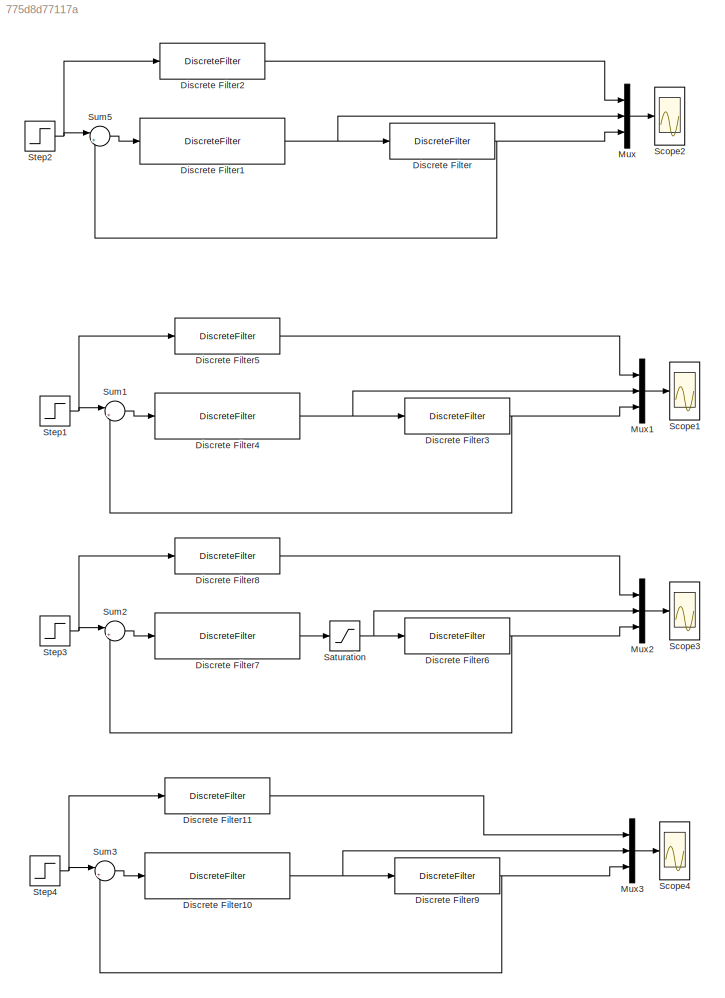
MODEL slx_775d8d77117a
KIND model
BLOCK [DiscreteFilter] Discrete Filter
  Denominator = [1 -1.64 0.8187]
  InputPortMap = u0
  Numerator = [0 0.1842 0.1723]
  Ports = [1, 1]
  SampleTime = 0.1
BLOCK [DiscreteFilter] Discrete Filter1
  Denominator = [1 -0.5167 -0.4833]
  InputPortMap = u0
  Numerator = [2.8050 -4.6003 2.2965]
  Ports = [1, 1]
  SampleTime = 0.1
BLOCK [DiscreteFilter] Discrete Filter10
  Denominator = [1.0000   -0.5083   -0.4917]
  InputPortMap = u0
  Numerator = [10.5530  -19.5969    9.5483]
  Ports = [1, 1]
  SampleTime = 0.05
BLOCK [DiscreteFilter] Discrete Filter11
  Denominator = [1 -1.9 0.9048]
  InputPortMap = u0
  Numerator = [0 0.04817 0.04659]
  Ports = [1, 1]
  SampleTime = 0.05
BLOCK [DiscreteFilter] Discrete Filter2
  Denominator = [1 -1.64 0.8187]
  InputPortMap = u0
  Numerator = [0 0.1842 0.1723]
  Ports = [1, 1]
  SampleTime = 0.1
BLOCK [DiscreteFilter] Discrete Filter3
  Denominator = [1 -1.857 0.9048]
  InputPortMap = u0
  Numerator = [0 0.04817 0.04659]
  Ports = [1, 1]
  SampleTime = 0.05
BLOCK [DiscreteFilter] Discrete Filter4
  Denominator = [1.0000   -0.5083   -0.4917]
  InputPortMap = u0
  Numerator = [10.5530  -19.5969    9.5483]
  Ports = [1, 1]
  SampleTime = 0.05
BLOCK [DiscreteFilter] Discrete Filter5
  Denominator = [1 -1.857 0.9048]
  InputPortMap = u0
  Numerator = [0 0.04817 0.04659]
  Ports = [1, 1]
  SampleTime = 0.05
BLOCK [DiscreteFilter] Discrete Filter6
  Denominator = [1 -1.857 0.9048]
  InputPortMap = u0
  Numerator = [0 0.04817 0.04659]
  Ports = [1, 1]
  SampleTime = 0.05
BLOCK [DiscreteFilter] Discrete Filter7
  Denominator = [1.0000   -0.5083   -0.4917]
  InputPortMap = u0
  Numerator = [10.5530  -19.5969    9.5483]
  Ports = [1, 1]
  SampleTime = 0.05
BLOCK [DiscreteFilter] Discrete Filter8
  Denominator = [1 -1.857 0.9048]
  InputPortMap = u0
  Numerator = [0 0.04817 0.04659]
  Ports = [1, 1]
  SampleTime = 0.05
BLOCK [DiscreteFilter] Discrete Filter9
  Denominator = [1 -1.9 0.9048]
  InputPortMap = u0
  Numerator = [0 0.04817 0.04659]
  Ports = [1, 1]
  SampleTime = 0.05
BLOCK [Mux] Mux
  DisplayOption = bar
  Inputs = 3
  Ports = [3, 1]
BLOCK [Mux] Mux1
  DisplayOption = bar
  Inputs = 3
  Ports = [3, 1]
BLOCK [Mux] Mux2
  DisplayOption = bar
  Inputs = 3
  Ports = [3, 1]
BLOCK [Mux] Mux3
  DisplayOption = bar
  Inputs = 3
  Ports = [3, 1]
BLOCK [Saturate] Saturation
  InputPortMap = u0
  LowerLimit = -3
  Ports = [1, 1]
  SampleTime = 0.05
  UpperLimit = 3
BLOCK [Scope] Scope1
  Floating = off
  LegendLocations = 0.70185     0.74223     0.20995      0.1357
  NumInputPorts = 1
  Ports = [1]
  ShowLegends = on
  YMax = 2
  YMin = 0
  ZoomMode = xonly
BLOCK [Scope] Scope2
  Floating = off
  LegendLocations = 0.82946     0.85787     0.20694     0.11779
  NumInputPorts = 1
  Ports = [1]
  SaveName = ScopeData2
  ShowLegends = on
  YMax = 2
  YMin = 0
  ZoomMode = xonly
BLOCK [Scope] Scope3
  Floating = off
  LegendLocations = 0.82236     0.85547     0.23083     0.12258
  NumInputPorts = 1
  Ports = [1]
  SaveName = ScopeData1
  ShowLegends = on
  YMax = 2
  YMin = 0
  ZoomMode = xonly
BLOCK [Scope] Scope4
  Floating = off
  LegendLocations = 0.81222     0.86249     0.24343     0.11309
  NumInputPorts = 1
  Ports = [1]
  SaveName = ScopeData3
  ShowLegends = on
  YMax = 2
  YMin = 0
  ZoomMode = xonly
BLOCK [Step] Step1
  SampleTime = 0.05
  Time = 0
BLOCK [Step] Step2
  SampleTime = 0.1
  Time = 0
BLOCK [Step] Step3
  SampleTime = 0.05
  Time = 0
BLOCK [Step] Step4
  SampleTime = 0.05
  Time = 0
BLOCK [Sum] Sum1
  IconShape = round
  InputSameDT = off
  Inputs = |+-
  OutDataTypeStr = Inherit: Inherit via internal rule
  Ports = [2, 1]
  SaturateOnIntegerOverflow = off
BLOCK [Sum] Sum2
  IconShape = round
  InputSameDT = off
  Inputs = |+-
  OutDataTypeStr = Inherit: Inherit via internal rule
  Ports = [2, 1]
  SaturateOnIntegerOverflow = off
BLOCK [Sum] Sum3
  IconShape = round
  InputSameDT = off
  Inputs = |+-
  OutDataTypeStr = Inherit: Inherit via internal rule
  Ports = [2, 1]
  SaturateOnIntegerOverflow = off
BLOCK [Sum] Sum5
  IconShape = round
  InputSameDT = off
  Inputs = |+-
  OutDataTypeStr = Inherit: Inherit via internal rule
  Ports = [2, 1]
  SaturateOnIntegerOverflow = off
NET Discrete Filter10:1 -> Discrete Filter9:1, Mux3:2
LINE Discrete Filter11:1 -> Mux3:1
NET Discrete Filter1:1 -> Discrete Filter:1, Mux:2
LINE Discrete Filter2:1 -> Mux:1
NET Discrete Filter3:1 -> Mux1:3, Sum1:2
NET Discrete Filter4:1 -> Discrete Filter3:1, Mux1:2
LINE Discrete Filter5:1 -> Mux1:1
NET Discrete Filter6:1 -> Mux2:3, Sum2:2
LINE Discrete Filter7:1 -> Saturation:1
LINE Discrete Filter8:1 -> Mux2:1
NET Discrete Filter9:1 -> Mux3:3, Sum3:2
NET Discrete Filter:1 -> Mux:3, Sum5:2
LINE Mux1:1 -> Scope1:1
LINE Mux2:1 -> Scope3:1
LINE Mux3:1 -> Scope4:1
LINE Mux:1 -> Scope2:1
NET Saturation:1 -> Discrete Filter6:1, Mux2:2
NET Step1:1 -> Discrete Filter5:1, Sum1:1
NET Step2:1 -> Discrete Filter2:1, Sum5:1
NET Step3:1 -> Discrete Filter8:1, Sum2:1
NET Step4:1 -> Discrete Filter11:1, Sum3:1
LINE Sum1:1 -> Discrete Filter4:1
LINE Sum2:1 -> Discrete Filter7:1
LINE Sum3:1 -> Discrete Filter10:1
LINE Sum5:1 -> Discrete Filter1:1
note: NET lines group one-source signal fan-out (src -> all destinations, sorted); 1:1 wires keep LINE
